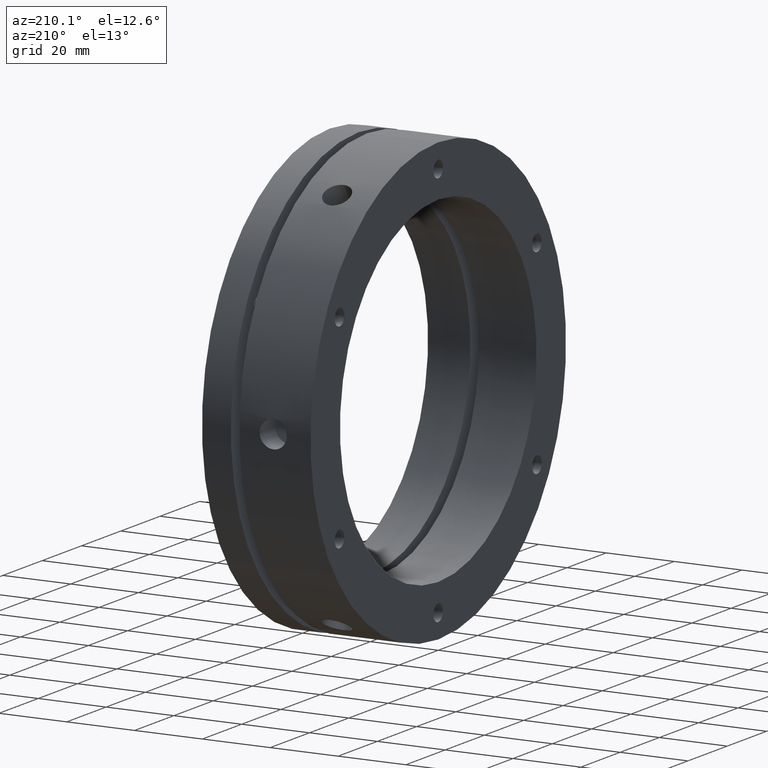
[diagram: clean part render]
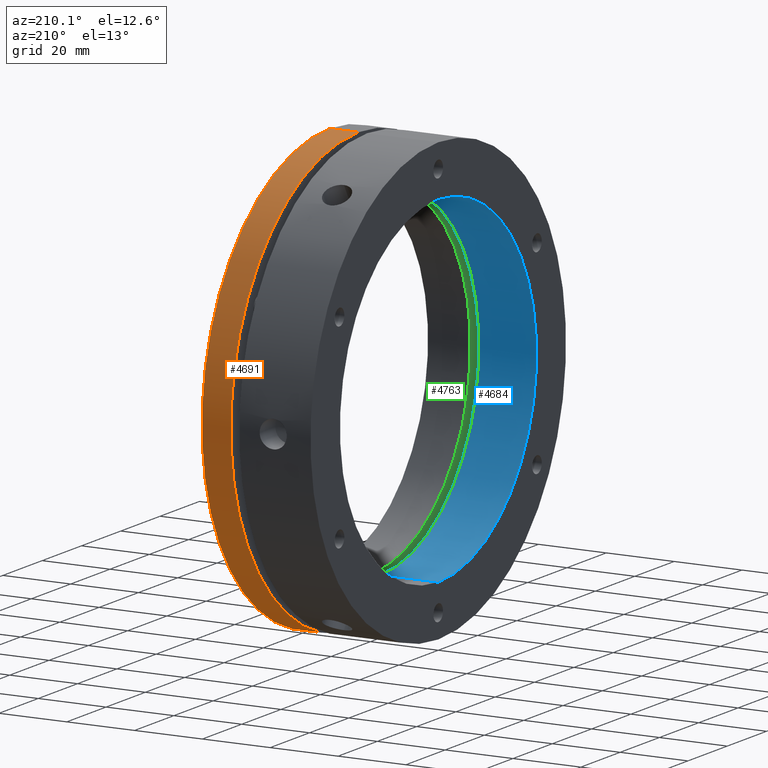
[diagram: same view with three faces highlighted in distinct colors, each labeled with its STEP entity id]
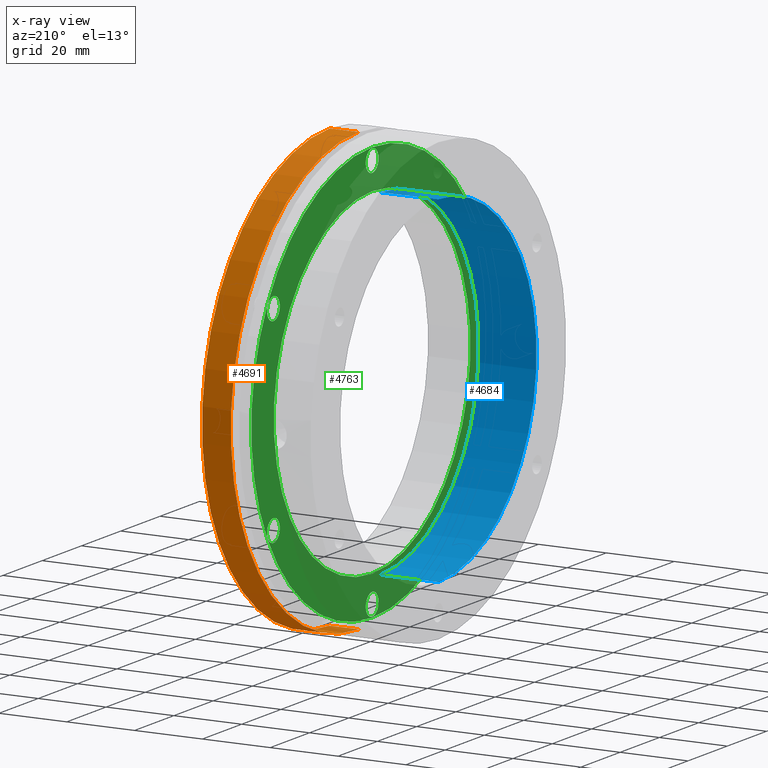
[diagram: x-ray of the same camera — body ghosted, the three highlighted faces saturated]
A machine part, auxiliary view with three faces highlighted in distinct colors.
The next image is the same camera in x-ray (body ghosted, the three faces saturated) — at least one of them is partly hidden behind the body in this view.
Their STEP definitions:

[orange] entity #4691 — the highlighted cylindrical surface (partial cylindrical patch) has radius 65 mm, axis along (1, 0, 0).
#161 = VERTEX_POINT ( 'NONE', #4328 ) ;
#164 = VERTEX_POINT ( 'NONE', #4332 ) ;
#394 = EDGE_CURVE ( 'NONE', #161, #3432, #3961, .T. ) ;
#395 = EDGE_CURVE ( 'NONE', #164, #3243, #3960, .T. ) ;
#399 = EDGE_CURVE ( 'NONE', #3432, #3243, #3952, .T. ) ;
#425 = EDGE_CURVE ( 'NONE', #164, #161, #3912, .T. ) ;
#604 = DIRECTION ( 'NONE',  ( 1.000000000000000000, 0.0000000000000000000, 0.0000000000000000000 ) ) ;
#613 = CARTESIAN_POINT ( 'NONE',  ( 15.99999999999998200, 0.0000000000000000000, -65.00000000000000000 ) ) ;
#614 = CARTESIAN_POINT ( 'NONE',  ( 15.99999999999998200, 7.960204194457797300E-015, 65.00000000000000000 ) ) ;
#618 = DIRECTION ( 'NONE',  ( 1.000000000000000000, 0.0000000000000000000, 0.0000000000000000000 ) ) ;
#629 = CARTESIAN_POINT ( 'NONE',  ( 31.99999999999998600, 0.0000000000000000000, 0.0000000000000000000 ) ) ;
#630 = DIRECTION ( 'NONE',  ( -1.000000000000000000, -0.0000000000000000000, -0.0000000000000000000 ) ) ;
#631 = DIRECTION ( 'NONE',  ( 0.0000000000000000000, 0.0000000000000000000, -1.000000000000000000 ) ) ;
#693 = CARTESIAN_POINT ( 'NONE',  ( 23.49999999999998600, 0.0000000000000000000, 0.0000000000000000000 ) ) ;
#694 = DIRECTION ( 'NONE',  ( 1.000000000000000000, 0.0000000000000000000, 0.0000000000000000000 ) ) ;
#695 = DIRECTION ( 'NONE',  ( 0.0000000000000000000, 0.0000000000000000000, -1.000000000000000000 ) ) ;
#1306 = CARTESIAN_POINT ( 'NONE',  ( 31.99999999999998600, 0.0000000000000000000, -65.00000000000000000 ) ) ;
#1327 = CARTESIAN_POINT ( 'NONE',  ( 31.99999999999998600, 7.960204194457797300E-015, 65.00000000000000000 ) ) ;
#1899 = DIRECTION ( 'NONE',  ( 0.0000000000000000000, 0.0000000000000000000, -1.000000000000000000 ) ) ;
#1901 = DIRECTION ( 'NONE',  ( 1.000000000000000000, 0.0000000000000000000, 0.0000000000000000000 ) ) ;
#1903 = CARTESIAN_POINT ( 'NONE',  ( 15.99999999999998200, 0.0000000000000000000, 0.0000000000000000000 ) ) ;
#2453 = ORIENTED_EDGE ( 'NONE', *, *, #395, .F. ) ;
#2455 = ORIENTED_EDGE ( 'NONE', *, *, #399, .T. ) ;
#2456 = ORIENTED_EDGE ( 'NONE', *, *, #394, .T. ) ;
#2457 = ORIENTED_EDGE ( 'NONE', *, *, #425, .T. ) ;
#3243 = VERTEX_POINT ( 'NONE', #1306 ) ;
#3298 = EDGE_LOOP ( 'NONE', ( #2457, #2456, #2455, #2453 ) ) ;
#3432 = VERTEX_POINT ( 'NONE', #1327 ) ;
#3856 = AXIS2_PLACEMENT_3D ( 'NONE', #1903, #1901, #1899 ) ;
#3912 = CIRCLE ( 'NONE', #4205, 65.00000000000000000 ) ;
#3952 = CIRCLE ( 'NONE', #4218, 65.00000000000000000 ) ;
#3956 = VECTOR ( 'NONE', #618, 1000.000000000000000 ) ;
#3958 = VECTOR ( 'NONE', #604, 1000.000000000000000 ) ;
#3960 = LINE ( 'NONE', #613, #3956 ) ;
#3961 = LINE ( 'NONE', #614, #3958 ) ;
#4205 = AXIS2_PLACEMENT_3D ( 'NONE', #693, #694, #695 ) ;
#4218 = AXIS2_PLACEMENT_3D ( 'NONE', #629, #630, #631 ) ;
#4328 = CARTESIAN_POINT ( 'NONE',  ( 23.49999999999998600, 7.960204194457797300E-015, 65.00000000000000000 ) ) ;
#4332 = CARTESIAN_POINT ( 'NONE',  ( 23.49999999999998600, 0.0000000000000000000, -65.00000000000000000 ) ) ;
#4578 = FACE_OUTER_BOUND ( 'NONE', #3298, .T. ) ;
#4614 = CYLINDRICAL_SURFACE ( 'NONE', #3856, 65.00000000000000000 ) ;
#4691 = ADVANCED_FACE ( 'NONE', ( #4578 ), #4614, .T. ) ;

[blue] entity #4684 — the highlighted cylindrical surface (partial cylindrical patch) has radius 50 mm, axis along (1, 0, 0).
#244 = VERTEX_POINT ( 'NONE', #4410 ) ;
#267 = VERTEX_POINT ( 'NONE', #4432 ) ;
#287 = VERTEX_POINT ( 'NONE', #4445 ) ;
#290 = VERTEX_POINT ( 'NONE', #4446 ) ;
#297 = CIRCLE ( 'NONE', #4091, 50.00000000000000000 ) ;
#1344 = CARTESIAN_POINT ( 'NONE',  ( 15.99999999999998600, 6.123233995736766100E-015, 50.00000000000000000 ) ) ;
#1345 = DIRECTION ( 'NONE',  ( 1.000000000000000000, 0.0000000000000000000, 0.0000000000000000000 ) ) ;
#1349 = DIRECTION ( 'NONE',  ( 1.000000000000000000, 0.0000000000000000000, 0.0000000000000000000 ) ) ;
#1350 = CARTESIAN_POINT ( 'NONE',  ( -1.387778780781445700E-014, 0.0000000000000000000, 0.0000000000000000000 ) ) ;
#1351 = DIRECTION ( 'NONE',  ( 1.000000000000000000, 0.0000000000000000000, 0.0000000000000000000 ) ) ;
#1352 = DIRECTION ( 'NONE',  ( 0.0000000000000000000, 0.0000000000000000000, -1.000000000000000000 ) ) ;
#1353 = CARTESIAN_POINT ( 'NONE',  ( 15.99999999999998600, 0.0000000000000000000, -50.00000000000000000 ) ) ;
#1355 = CARTESIAN_POINT ( 'NONE',  ( 17.00000000000000700, 0.0000000000000000000, 0.0000000000000000000 ) ) ;
#1356 = DIRECTION ( 'NONE',  ( -1.000000000000000000, -0.0000000000000000000, -0.0000000000000000000 ) ) ;
#1357 = DIRECTION ( 'NONE',  ( 0.0000000000000000000, 0.0000000000000000000, -1.000000000000000000 ) ) ;
#1878 = DIRECTION ( 'NONE',  ( 0.0000000000000000000, 0.0000000000000000000, -1.000000000000000000 ) ) ;
#1880 = DIRECTION ( 'NONE',  ( 1.000000000000000000, 0.0000000000000000000, 0.0000000000000000000 ) ) ;
#1882 = CARTESIAN_POINT ( 'NONE',  ( 15.99999999999998600, 0.0000000000000000000, 0.0000000000000000000 ) ) ;
#2294 = ORIENTED_EDGE ( 'NONE', *, *, #4238, .F. ) ;
#2295 = ORIENTED_EDGE ( 'NONE', *, *, #4239, .T. ) ;
#2339 = ORIENTED_EDGE ( 'NONE', *, *, #4241, .F. ) ;
#2513 = ORIENTED_EDGE ( 'NONE', *, *, #4240, .F. ) ;
#3416 = EDGE_LOOP ( 'NONE', ( #2294, #2295, #2513, #2339 ) ) ;
#3503 = VECTOR ( 'NONE', #1349, 1000.000000000000000 ) ;
#3505 = CIRCLE ( 'NONE', #4090, 50.00000000000000000 ) ;
#3506 = LINE ( 'NONE', #1353, #3503 ) ;
#3507 = VECTOR ( 'NONE', #1345, 1000.000000000000000 ) ;
#3508 = LINE ( 'NONE', #1344, #3507 ) ;
#3863 = AXIS2_PLACEMENT_3D ( 'NONE', #1882, #1880, #1878 ) ;
#4090 = AXIS2_PLACEMENT_3D ( 'NONE', #1355, #1356, #1357 ) ;
#4091 = AXIS2_PLACEMENT_3D ( 'NONE', #1350, #1351, #1352 ) ;
#4238 = EDGE_CURVE ( 'NONE', #244, #267, #297, .T. ) ;
#4239 = EDGE_CURVE ( 'NONE', #244, #287, #3508, .T. ) ;
#4240 = EDGE_CURVE ( 'NONE', #290, #287, #3505, .T. ) ;
#4241 = EDGE_CURVE ( 'NONE', #267, #290, #3506, .T. ) ;
#4410 = CARTESIAN_POINT ( 'NONE',  ( -1.387778780781445700E-014, 6.123233995736766100E-015, 50.00000000000000000 ) ) ;
#4432 = CARTESIAN_POINT ( 'NONE',  ( -1.387778780781445700E-014, 0.0000000000000000000, -50.00000000000000000 ) ) ;
#4445 = CARTESIAN_POINT ( 'NONE',  ( 17.00000000000000700, 6.123233995736766100E-015, 50.00000000000000000 ) ) ;
#4446 = CARTESIAN_POINT ( 'NONE',  ( 17.00000000000000700, 0.0000000000000000000, -50.00000000000000000 ) ) ;
#4585 = CYLINDRICAL_SURFACE ( 'NONE', #3863, 50.00000000000000000 ) ;
#4594 = FACE_OUTER_BOUND ( 'NONE', #3416, .T. ) ;
#4684 = ADVANCED_FACE ( 'NONE', ( #4594 ), #4585, .F. ) ;

[green] entity #4763 — the highlighted planar face has unit normal (1, 0, 0).
#160 = VERTEX_POINT ( 'NONE', #4331 ) ;
#191 = VERTEX_POINT ( 'NONE', #4357 ) ;
#192 = VERTEX_POINT ( 'NONE', #4358 ) ;
#195 = VERTEX_POINT ( 'NONE', #4361 ) ;
#196 = VERTEX_POINT ( 'NONE', #4362 ) ;
#199 = VERTEX_POINT ( 'NONE', #4365 ) ;
#200 = VERTEX_POINT ( 'NONE', #4366 ) ;
#203 = VERTEX_POINT ( 'NONE', #4369 ) ;
#204 = VERTEX_POINT ( 'NONE', #4370 ) ;
#207 = VERTEX_POINT ( 'NONE', #4373 ) ;
#208 = VERTEX_POINT ( 'NONE', #4374 ) ;
#211 = VERTEX_POINT ( 'NONE', #4377 ) ;
#212 = VERTEX_POINT ( 'NONE', #4378 ) ;
#215 = VERTEX_POINT ( 'NONE', #4381 ) ;
#222 = VERTEX_POINT ( 'NONE', #4388 ) ;
#398 = EDGE_CURVE ( 'NONE', #160, #3256, #3955, .T. ) ;
#408 = EDGE_CURVE ( 'NONE', #192, #191, #3939, .T. ) ;
#415 = EDGE_CURVE ( 'NONE', #196, #195, #3932, .T. ) ;
#420 = EDGE_CURVE ( 'NONE', #200, #199, #3924, .T. ) ;
#429 = EDGE_CURVE ( 'NONE', #204, #203, #2917, .T. ) ;
#443 = EDGE_CURVE ( 'NONE', #3256, #160, #2899, .T. ) ;
#452 = EDGE_CURVE ( 'NONE', #191, #192, #2890, .T. ) ;
#454 = EDGE_CURVE ( 'NONE', #215, #222, #2888, .T. ) ;
#455 = EDGE_CURVE ( 'NONE', #211, #212, #2893, .T. ) ;
#456 = EDGE_CURVE ( 'NONE', #207, #208, #2887, .T. ) ;
#457 = EDGE_CURVE ( 'NONE', #203, #204, #2886, .T. ) ;
#459 = EDGE_CURVE ( 'NONE', #199, #200, #2883, .T. ) ;
#460 = EDGE_CURVE ( 'NONE', #195, #196, #2882, .T. ) ;
#625 = CARTESIAN_POINT ( 'NONE',  ( 19.49999999999999600, 0.0000000000000000000, 0.0000000000000000000 ) ) ;
#626 = DIRECTION ( 'NONE',  ( -1.000000000000000000, -0.0000000000000000000, -0.0000000000000000000 ) ) ;
#627 = DIRECTION ( 'NONE',  ( 0.0000000000000000000, 0.0000000000000000000, -1.000000000000000000 ) ) ;
#650 = CARTESIAN_POINT ( 'NONE',  ( 19.49999999999998900, 0.0000000000000000000, 0.0000000000000000000 ) ) ;
#651 = DIRECTION ( 'NONE',  ( 1.000000000000000000, -0.0000000000000000000, -0.0000000000000000000 ) ) ;
#652 = DIRECTION ( 'NONE',  ( 0.0000000000000000000, 0.0000000000000000000, 1.000000000000000000 ) ) ;
#667 = CARTESIAN_POINT ( 'NONE',  ( 19.49999999999998600, 50.22947341949748800, 28.99999999999997200 ) ) ;
#668 = DIRECTION ( 'NONE',  ( 1.000000000000000000, 0.0000000000000000000, 0.0000000000000000000 ) ) ;
#669 = DIRECTION ( 'NONE',  ( 0.0000000000000000000, 0.0000000000000000000, -1.000000000000000000 ) ) ;
#680 = CARTESIAN_POINT ( 'NONE',  ( 19.49999999999998600, 50.22947341949745200, -29.00000000000003600 ) ) ;
#681 = DIRECTION ( 'NONE',  ( 1.000000000000000000, 0.0000000000000000000, 0.0000000000000000000 ) ) ;
#682 = DIRECTION ( 'NONE',  ( 0.0000000000000000000, 0.0000000000000000000, -1.000000000000000000 ) ) ;
#702 = CARTESIAN_POINT ( 'NONE',  ( 19.49999999999998600, -8.881783999999999800E-015, -58.00000000000003600 ) ) ;
#703 = DIRECTION ( 'NONE',  ( 1.000000000000000000, 0.0000000000000000000, 0.0000000000000000000 ) ) ;
#704 = DIRECTION ( 'NONE',  ( 0.0000000000000000000, 0.0000000000000000000, -1.000000000000000000 ) ) ;
#738 = CARTESIAN_POINT ( 'NONE',  ( 19.49999999999999600, 0.0000000000000000000, 0.0000000000000000000 ) ) ;
#739 = DIRECTION ( 'NONE',  ( -1.000000000000000000, -0.0000000000000000000, -0.0000000000000000000 ) ) ;
#740 = DIRECTION ( 'NONE',  ( 0.0000000000000000000, 0.0000000000000000000, -1.000000000000000000 ) ) ;
#765 = CARTESIAN_POINT ( 'NONE',  ( 19.49999999999998900, 0.0000000000000000000, 0.0000000000000000000 ) ) ;
#766 = DIRECTION ( 'NONE',  ( 1.000000000000000000, -0.0000000000000000000, -0.0000000000000000000 ) ) ;
#767 = DIRECTION ( 'NONE',  ( 0.0000000000000000000, 0.0000000000000000000, 1.000000000000000000 ) ) ;
#771 = CARTESIAN_POINT ( 'NONE',  ( 19.49999999999998600, 0.0000000000000000000, 58.00000000000002800 ) ) ;
#772 = DIRECTION ( 'NONE',  ( 1.000000000000000000, 0.0000000000000000000, 0.0000000000000000000 ) ) ;
#773 = DIRECTION ( 'NONE',  ( 0.0000000000000000000, 0.0000000000000000000, -1.000000000000000000 ) ) ;
#774 = CARTESIAN_POINT ( 'NONE',  ( 19.49999999999998600, -50.22947341949745900, 29.00000000000001800 ) ) ;
#775 = DIRECTION ( 'NONE',  ( 1.000000000000000000, 0.0000000000000000000, 0.0000000000000000000 ) ) ;
#776 = DIRECTION ( 'NONE',  ( 0.0000000000000000000, 0.0000000000000000000, -1.000000000000000000 ) ) ;
#777 = CARTESIAN_POINT ( 'NONE',  ( 19.49999999999998600, -50.22947341949746700, -29.00000000000000400 ) ) ;
#778 = DIRECTION ( 'NONE',  ( 1.000000000000000000, 0.0000000000000000000, 0.0000000000000000000 ) ) ;
#779 = DIRECTION ( 'NONE',  ( 0.0000000000000000000, 0.0000000000000000000, -1.000000000000000000 ) ) ;
#780 = CARTESIAN_POINT ( 'NONE',  ( 19.49999999999998600, -8.881783999999999800E-015, -58.00000000000003600 ) ) ;
#781 = DIRECTION ( 'NONE',  ( 1.000000000000000000, 0.0000000000000000000, 0.0000000000000000000 ) ) ;
#782 = DIRECTION ( 'NONE',  ( 0.0000000000000000000, 0.0000000000000000000, -1.000000000000000000 ) ) ;
#786 = CARTESIAN_POINT ( 'NONE',  ( 19.49999999999998600, 50.22947341949745200, -29.00000000000003600 ) ) ;
#787 = DIRECTION ( 'NONE',  ( 1.000000000000000000, 0.0000000000000000000, 0.0000000000000000000 ) ) ;
#788 = DIRECTION ( 'NONE',  ( 0.0000000000000000000, 0.0000000000000000000, -1.000000000000000000 ) ) ;
#789 = CARTESIAN_POINT ( 'NONE',  ( 19.49999999999998600, 50.22947341949748800, 28.99999999999997200 ) ) ;
#790 = DIRECTION ( 'NONE',  ( 1.000000000000000000, 0.0000000000000000000, 0.0000000000000000000 ) ) ;
#791 = DIRECTION ( 'NONE',  ( 0.0000000000000000000, 0.0000000000000000000, -1.000000000000000000 ) ) ;
#1312 = CARTESIAN_POINT ( 'NONE',  ( 19.49999999999999600, 6.123233995736766100E-015, 50.00000000000000000 ) ) ;
#1389 = CARTESIAN_POINT ( 'NONE',  ( 19.49999999999998600, -50.22947341949746700, -29.00000000000000400 ) ) ;
#1390 = DIRECTION ( 'NONE',  ( 1.000000000000000000, 0.0000000000000000000, 0.0000000000000000000 ) ) ;
#1391 = DIRECTION ( 'NONE',  ( 0.0000000000000000000, 0.0000000000000000000, -1.000000000000000000 ) ) ;
#1396 = CARTESIAN_POINT ( 'NONE',  ( 19.49999999999998600, -50.22947341949745900, 29.00000000000001800 ) ) ;
#1397 = DIRECTION ( 'NONE',  ( 1.000000000000000000, 0.0000000000000000000, 0.0000000000000000000 ) ) ;
#1398 = DIRECTION ( 'NONE',  ( 0.0000000000000000000, 0.0000000000000000000, -1.000000000000000000 ) ) ;
#1411 = CARTESIAN_POINT ( 'NONE',  ( 19.49999999999998600, 0.0000000000000000000, 58.00000000000002800 ) ) ;
#1412 = DIRECTION ( 'NONE',  ( 1.000000000000000000, 0.0000000000000000000, 0.0000000000000000000 ) ) ;
#1413 = DIRECTION ( 'NONE',  ( 0.0000000000000000000, 0.0000000000000000000, -1.000000000000000000 ) ) ;
#2146 = DIRECTION ( 'NONE',  ( 1.000000000000000000, -0.0000000000000000000, 0.0000000000000000000 ) ) ;
#2152 = CARTESIAN_POINT ( 'NONE',  ( 19.49999999999999600, 30.75000000000000000, 0.0000000000000000000 ) ) ;
#2153 = PLANE ( 'NONE',  #3778 ) ;
#2154 = DIRECTION ( 'NONE',  ( 0.0000000000000000000, 0.0000000000000000000, -1.000000000000000000 ) ) ;
#2613 = FACE_BOUND ( 'NONE', #3299, .T. ) ;
#2614 = FACE_BOUND ( 'NONE', #3337, .T. ) ;
#2615 = FACE_BOUND ( 'NONE', #3292, .T. ) ;
#2616 = FACE_BOUND ( 'NONE', #3313, .T. ) ;
#2618 = FACE_BOUND ( 'NONE', #3301, .T. ) ;
#2619 = FACE_BOUND ( 'NONE', #3296, .T. ) ;
#2620 = FACE_BOUND ( 'NONE', #3338, .T. ) ;
#2621 = FACE_OUTER_BOUND ( 'NONE', #3294, .T. ) ;
#2882 = CIRCLE ( 'NONE', #4177, 3.249999999999999600 ) ;
#2883 = CIRCLE ( 'NONE', #4178, 3.249999999999999600 ) ;
#2886 = CIRCLE ( 'NONE', #4180, 3.250000000000002700 ) ;
#2887 = CIRCLE ( 'NONE', #4181, 3.250000000000002700 ) ;
#2888 = CIRCLE ( 'NONE', #4183, 3.250000000000002700 ) ;
#2890 = CIRCLE ( 'NONE', #4185, 61.50000000000000000 ) ;
#2893 = CIRCLE ( 'NONE', #4182, 3.249999999999999600 ) ;
#2899 = CIRCLE ( 'NONE', #4194, 50.00000000000000000 ) ;
#2917 = CIRCLE ( 'NONE', #4203, 3.250000000000002700 ) ;
#2938 = ORIENTED_EDGE ( 'NONE', *, *, #452, .F. ) ;
#2939 = ORIENTED_EDGE ( 'NONE', *, *, #408, .F. ) ;
#2940 = ORIENTED_EDGE ( 'NONE', *, *, #415, .T. ) ;
#2941 = ORIENTED_EDGE ( 'NONE', *, *, #460, .T. ) ;
#2943 = ORIENTED_EDGE ( 'NONE', *, *, #420, .T. ) ;
#2946 = ORIENTED_EDGE ( 'NONE', *, *, #459, .T. ) ;
#2947 = ORIENTED_EDGE ( 'NONE', *, *, #429, .T. ) ;
#2948 = ORIENTED_EDGE ( 'NONE', *, *, #457, .T. ) ;
#2949 = ORIENTED_EDGE ( 'NONE', *, *, #4254, .T. ) ;
#2953 = ORIENTED_EDGE ( 'NONE', *, *, #456, .T. ) ;
#2955 = ORIENTED_EDGE ( 'NONE', *, *, #4257, .T. ) ;
#2956 = ORIENTED_EDGE ( 'NONE', *, *, #455, .T. ) ;
#2957 = ORIENTED_EDGE ( 'NONE', *, *, #4264, .T. ) ;
#2958 = ORIENTED_EDGE ( 'NONE', *, *, #454, .T. ) ;
#2959 = ORIENTED_EDGE ( 'NONE', *, *, #443, .F. ) ;
#2961 = ORIENTED_EDGE ( 'NONE', *, *, #398, .F. ) ;
#3256 = VERTEX_POINT ( 'NONE', #1312 ) ;
#3292 = EDGE_LOOP ( 'NONE', ( #2961, #2959 ) ) ;
#3294 = EDGE_LOOP ( 'NONE', ( #2939, #2938 ) ) ;
#3296 = EDGE_LOOP ( 'NONE', ( #2946, #2943 ) ) ;
#3299 = EDGE_LOOP ( 'NONE', ( #2953, #2949 ) ) ;
#3301 = EDGE_LOOP ( 'NONE', ( #2958, #2957 ) ) ;
#3313 = EDGE_LOOP ( 'NONE', ( #2948, #2947 ) ) ;
#3337 = EDGE_LOOP ( 'NONE', ( #2956, #2955 ) ) ;
#3338 = EDGE_LOOP ( 'NONE', ( #2941, #2940 ) ) ;
#3469 = CIRCLE ( 'NONE', #4080, 3.250000000000002700 ) ;
#3485 = CIRCLE ( 'NONE', #4084, 3.250000000000002700 ) ;
#3488 = CIRCLE ( 'NONE', #4083, 3.249999999999999600 ) ;
#3778 = AXIS2_PLACEMENT_3D ( 'NONE', #2152, #2146, #2154 ) ;
#3924 = CIRCLE ( 'NONE', #4208, 3.249999999999999600 ) ;
#3932 = CIRCLE ( 'NONE', #4211, 3.249999999999999600 ) ;
#3939 = CIRCLE ( 'NONE', #4214, 61.50000000000000000 ) ;
#3955 = CIRCLE ( 'NONE', #4219, 50.00000000000000000 ) ;
#4080 = AXIS2_PLACEMENT_3D ( 'NONE', #1411, #1412, #1413 ) ;
#4083 = AXIS2_PLACEMENT_3D ( 'NONE', #1396, #1397, #1398 ) ;
#4084 = AXIS2_PLACEMENT_3D ( 'NONE', #1389, #1390, #1391 ) ;
#4177 = AXIS2_PLACEMENT_3D ( 'NONE', #789, #790, #791 ) ;
#4178 = AXIS2_PLACEMENT_3D ( 'NONE', #786, #787, #788 ) ;
#4180 = AXIS2_PLACEMENT_3D ( 'NONE', #780, #781, #782 ) ;
#4181 = AXIS2_PLACEMENT_3D ( 'NONE', #777, #778, #779 ) ;
#4182 = AXIS2_PLACEMENT_3D ( 'NONE', #774, #775, #776 ) ;
#4183 = AXIS2_PLACEMENT_3D ( 'NONE', #771, #772, #773 ) ;
#4185 = AXIS2_PLACEMENT_3D ( 'NONE', #765, #766, #767 ) ;
#4194 = AXIS2_PLACEMENT_3D ( 'NONE', #738, #739, #740 ) ;
#4203 = AXIS2_PLACEMENT_3D ( 'NONE', #702, #703, #704 ) ;
#4208 = AXIS2_PLACEMENT_3D ( 'NONE', #680, #681, #682 ) ;
#4211 = AXIS2_PLACEMENT_3D ( 'NONE', #667, #668, #669 ) ;
#4214 = AXIS2_PLACEMENT_3D ( 'NONE', #650, #651, #652 ) ;
#4219 = AXIS2_PLACEMENT_3D ( 'NONE', #625, #626, #627 ) ;
#4254 = EDGE_CURVE ( 'NONE', #208, #207, #3485, .T. ) ;
#4257 = EDGE_CURVE ( 'NONE', #212, #211, #3488, .T. ) ;
#4264 = EDGE_CURVE ( 'NONE', #222, #215, #3469, .T. ) ;
#4331 = CARTESIAN_POINT ( 'NONE',  ( 19.49999999999999600, 0.0000000000000000000, -50.00000000000000000 ) ) ;
#4357 = CARTESIAN_POINT ( 'NONE',  ( 19.49999999999998900, 7.531577814756222700E-015, -61.50000000000000000 ) ) ;
#4358 = CARTESIAN_POINT ( 'NONE',  ( 19.49999999999998900, 0.0000000000000000000, 61.50000000000000000 ) ) ;
#4361 = CARTESIAN_POINT ( 'NONE',  ( 19.49999999999998600, 50.22947341949748800, 25.74999999999997200 ) ) ;
#4362 = CARTESIAN_POINT ( 'NONE',  ( 19.49999999999998600, 50.22947341949748800, 32.24999999999997200 ) ) ;
#4365 = CARTESIAN_POINT ( 'NONE',  ( 19.49999999999998600, 50.22947341949745200, -32.25000000000003600 ) ) ;
#4366 = CARTESIAN_POINT ( 'NONE',  ( 19.49999999999998600, 50.22947341949745200, -25.75000000000003600 ) ) ;
#4369 = CARTESIAN_POINT ( 'NONE',  ( 19.49999999999998600, -8.881783999999999800E-015, -61.25000000000004300 ) ) ;
#4370 = CARTESIAN_POINT ( 'NONE',  ( 19.49999999999998600, -8.483773790277109000E-015, -54.75000000000003600 ) ) ;
#4373 = CARTESIAN_POINT ( 'NONE',  ( 19.49999999999998600, -50.22947341949746700, -32.25000000000000700 ) ) ;
#4374 = CARTESIAN_POINT ( 'NONE',  ( 19.49999999999998600, -50.22947341949746700, -25.75000000000000700 ) ) ;
#4377 = CARTESIAN_POINT ( 'NONE',  ( 19.49999999999998600, -50.22947341949745900, 25.75000000000001800 ) ) ;
#4378 = CARTESIAN_POINT ( 'NONE',  ( 19.49999999999998600, -50.22947341949745900, 32.25000000000002100 ) ) ;
#4381 = CARTESIAN_POINT ( 'NONE',  ( 19.49999999999998600, 0.0000000000000000000, 54.75000000000002800 ) ) ;
#4388 = CARTESIAN_POINT ( 'NONE',  ( 19.49999999999998600, 3.980102097228895300E-016, 61.25000000000003600 ) ) ;
#4763 = ADVANCED_FACE ( 'NONE', ( #2615, #2618, #2614, #2613, #2616, #2619, #2620, #2621 ), #2153, .F. ) ;